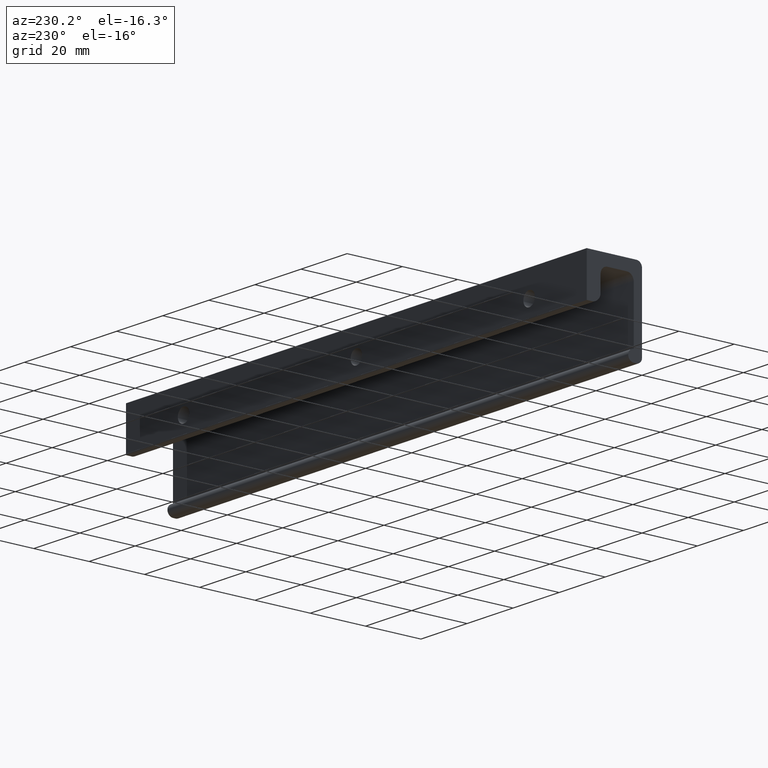
[diagram: clean part render]
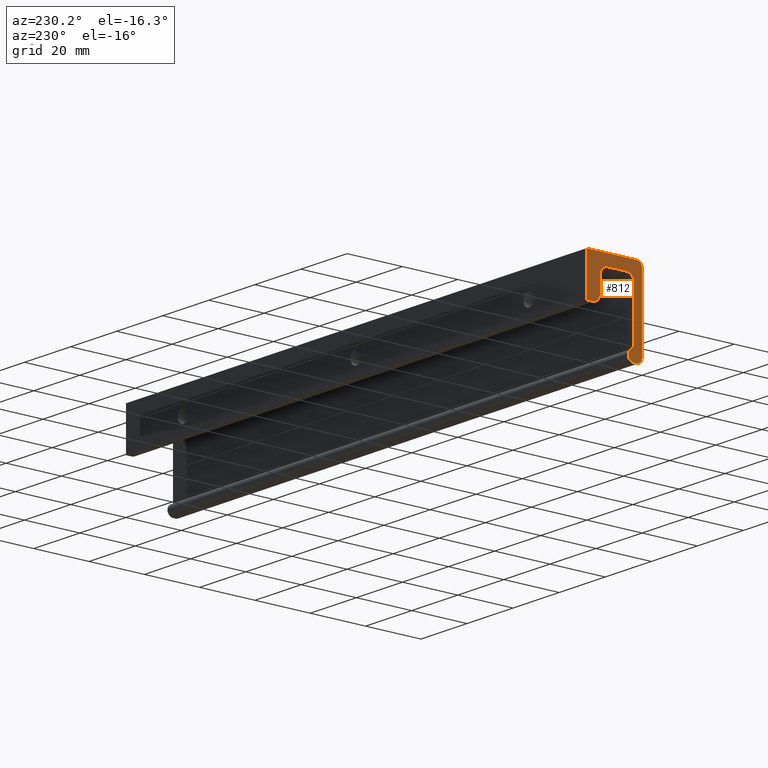
[diagram: same view with one face highlighted and labeled with its STEP entity id]
A machine part, auxiliary view. The second image highlights one B-rep face of the part: STEP entity #812.
In plain terms, the highlighted face is a freeform B-spline surface patch.
Its self-contained STEP definition (entity closure, byte-faithful):
#636=CARTESIAN_POINT('',(0.0,-5.000000000000110,-6.500000000000000));
#637=VERTEX_POINT('',#636);
#643=CARTESIAN_POINT('',(0.0,-5.0,-12.0));
#644=VERTEX_POINT('',#643);
#645=CARTESIAN_POINT('',(0.0,-5.0,-12.0));
#646=CARTESIAN_POINT('',(0.0,-5.000000000000110,-6.500000000000000));
#647=QUASI_UNIFORM_CURVE('',1,(#645,#646),.UNSPECIFIED.,.F.,.U.);
#648=EDGE_CURVE('',#644,#637,#647,.T.);
#665=CARTESIAN_POINT('',(-7.105427E-015,-20.998999961236120,1.498499941854179));
#666=CARTESIAN_POINT('',(-7.105427E-015,0.999000497677920,1.498499941854179));
#667=CARTESIAN_POINT('',(-7.105427E-015,-20.998999961236120,-31.498500746516889));
#668=CARTESIAN_POINT('',(-7.105427E-015,0.999000497677920,-31.498500746516889));
#669=B_SPLINE_SURFACE_WITH_KNOTS('',1,1,((#665,#667),(#666,#668)),.UNSPECIFIED.,.F.,.F.,.U.,(2,2),(2,2),(0.0,21.998000458914039),(0.0,32.997000688371067),.UNSPECIFIED.);
#670=CARTESIAN_POINT('',(0.0,0.0,0.0));
#671=VERTEX_POINT('',#670);
#672=CARTESIAN_POINT('',(0.0,0.0,-15.0));
#673=VERTEX_POINT('',#672);
#674=CARTESIAN_POINT('',(0.0,0.0,0.0));
#675=CARTESIAN_POINT('',(0.0,0.0,-15.0));
#676=QUASI_UNIFORM_CURVE('',1,(#674,#675),.UNSPECIFIED.,.F.,.U.);
#677=EDGE_CURVE('',#671,#673,#676,.T.);
#678=ORIENTED_EDGE('',*,*,#677,.T.);
#679=CARTESIAN_POINT('',(0.0,-2.0,-15.0));
#680=VERTEX_POINT('',#679);
#681=CARTESIAN_POINT('',(0.0,0.0,-15.0));
#682=CARTESIAN_POINT('',(0.0,-2.0,-15.0));
#683=QUASI_UNIFORM_CURVE('',1,(#681,#682),.UNSPECIFIED.,.F.,.U.);
#684=EDGE_CURVE('',#673,#680,#683,.T.);
#685=ORIENTED_EDGE('',*,*,#684,.T.);
#686=CARTESIAN_POINT('',(0.0,-5.0,-12.0));
#687=CARTESIAN_POINT('',(0.0,-5.000000000000001,-14.999999999999995));
#688=CARTESIAN_POINT('',(0.0,-2.0,-15.0));
#696=(BOUNDED_CURVE()B_SPLINE_CURVE(2,(#686,#687,#688),.UNSPECIFIED.,.F.,.U.)CURVE()GEOMETRIC_REPRESENTATION_ITEM()QUASI_UNIFORM_CURVE()RATIONAL_B_SPLINE_CURVE((1.0,0.707106781186548,1.0))REPRESENTATION_ITEM(''));
#697=EDGE_CURVE('',#644,#680,#696,.T.);
#698=ORIENTED_EDGE('',*,*,#697,.F.);
#699=ORIENTED_EDGE('',*,*,#648,.T.);
#700=CARTESIAN_POINT('',(0.0,-7.500000000000110,-4.0));
#701=VERTEX_POINT('',#700);
#702=CARTESIAN_POINT('',(0.0,-5.000000000000110,-6.500000000000000));
#703=CARTESIAN_POINT('',(0.0,-5.000000000000110,-4.000000000000000));
#704=CARTESIAN_POINT('',(0.0,-7.500000000000110,-4.0));
#712=(BOUNDED_CURVE()B_SPLINE_CURVE(2,(#702,#703,#704),.UNSPECIFIED.,.F.,.U.)CURVE()GEOMETRIC_REPRESENTATION_ITEM()QUASI_UNIFORM_CURVE()RATIONAL_B_SPLINE_CURVE((1.0,0.707106781186548,1.0))REPRESENTATION_ITEM(''));
#713=EDGE_CURVE('',#637,#701,#712,.T.);
#714=ORIENTED_EDGE('',*,*,#713,.T.);
#715=CARTESIAN_POINT('',(0.0,-14.500000000000000,-4.000000000000085));
#716=VERTEX_POINT('',#715);
#717=CARTESIAN_POINT('',(0.0,-7.500000000000110,-4.0));
#718=CARTESIAN_POINT('',(0.0,-14.500000000000000,-4.000000000000085));
#719=QUASI_UNIFORM_CURVE('',1,(#717,#718),.UNSPECIFIED.,.F.,.U.);
#720=EDGE_CURVE('',#701,#716,#719,.T.);
#721=ORIENTED_EDGE('',*,*,#720,.T.);
#722=CARTESIAN_POINT('',(0.0,-17.0,-6.500000000000000));
#723=VERTEX_POINT('',#722);
#724=CARTESIAN_POINT('',(0.0,-14.500000000000000,-4.000000000000085));
#725=CARTESIAN_POINT('',(0.0,-17.000000000000004,-4.000000000000000));
#726=CARTESIAN_POINT('',(0.0,-17.0,-6.500000000000000));
#734=(BOUNDED_CURVE()B_SPLINE_CURVE(2,(#724,#725,#726),.UNSPECIFIED.,.F.,.U.)CURVE()GEOMETRIC_REPRESENTATION_ITEM()QUASI_UNIFORM_CURVE()RATIONAL_B_SPLINE_CURVE((1.0,0.707106781186548,1.0))REPRESENTATION_ITEM(''));
#735=EDGE_CURVE('',#716,#723,#734,.T.);
#736=ORIENTED_EDGE('',*,*,#735,.T.);
#737=CARTESIAN_POINT('',(0.0,-17.000000000000249,-26.0));
#738=VERTEX_POINT('',#737);
#739=CARTESIAN_POINT('',(0.0,-17.0,-6.500000000000000));
#740=CARTESIAN_POINT('',(0.0,-17.000000000000249,-26.0));
#741=QUASI_UNIFORM_CURVE('',1,(#739,#740),.UNSPECIFIED.,.F.,.U.);
#742=EDGE_CURVE('',#723,#738,#741,.T.);
#743=ORIENTED_EDGE('',*,*,#742,.T.);
#744=CARTESIAN_POINT('',(0.0,-17.000000000000249,-30.0));
#745=VERTEX_POINT('',#744);
#746=CARTESIAN_POINT('',(0.0,-17.000000000000249,-30.0));
#747=CARTESIAN_POINT('',(0.0,-15.000000000000249,-30.000000000000004));
#748=CARTESIAN_POINT('',(0.0,-15.000000000000250,-28.0));
#749=CARTESIAN_POINT('',(0.0,-15.000000000000249,-26.000000000000004));
#750=CARTESIAN_POINT('',(0.0,-17.000000000000249,-26.0));
#758=(BOUNDED_CURVE()B_SPLINE_CURVE(2,(#746,#747,#748,#749,#750),.UNSPECIFIED.,.F.,.U.)B_SPLINE_CURVE_WITH_KNOTS((3,2,3),(0.0,0.500000000000000,1.0),.UNSPECIFIED.)CURVE()GEOMETRIC_REPRESENTATION_ITEM()RATIONAL_B_SPLINE_CURVE((1.0,0.707106781186548,1.0,0.707106781186548,1.0))REPRESENTATION_ITEM(''));
#759=EDGE_CURVE('',#745,#738,#758,.T.);
#760=ORIENTED_EDGE('',*,*,#759,.F.);
#761=CARTESIAN_POINT('',(0.0,-18.0,-30.0));
#762=VERTEX_POINT('',#761);
#763=CARTESIAN_POINT('',(0.0,-17.000000000000249,-30.0));
#764=CARTESIAN_POINT('',(0.0,-18.0,-30.0));
#765=QUASI_UNIFORM_CURVE('',1,(#763,#764),.UNSPECIFIED.,.F.,.U.);
#766=EDGE_CURVE('',#745,#762,#765,.T.);
#767=ORIENTED_EDGE('',*,*,#766,.T.);
#768=CARTESIAN_POINT('',(0.0,-20.0,-28.0));
#769=VERTEX_POINT('',#768);
#770=CARTESIAN_POINT('',(0.0,-20.0,-28.0));
#771=CARTESIAN_POINT('',(0.0,-19.999999999999996,-30.000000000000004));
#772=CARTESIAN_POINT('',(0.0,-18.0,-30.0));
#780=(BOUNDED_CURVE()B_SPLINE_CURVE(2,(#770,#771,#772),.UNSPECIFIED.,.F.,.U.)CURVE()GEOMETRIC_REPRESENTATION_ITEM()QUASI_UNIFORM_CURVE()RATIONAL_B_SPLINE_CURVE((1.0,0.707106781186548,1.0))REPRESENTATION_ITEM(''));
#781=EDGE_CURVE('',#769,#762,#780,.T.);
#782=ORIENTED_EDGE('',*,*,#781,.F.);
#783=CARTESIAN_POINT('',(0.0,-20.0,-2.0));
#784=VERTEX_POINT('',#783);
#785=CARTESIAN_POINT('',(0.0,-20.0,-28.0));
#786=CARTESIAN_POINT('',(0.0,-20.0,-2.0));
#787=QUASI_UNIFORM_CURVE('',1,(#785,#786),.UNSPECIFIED.,.F.,.U.);
#788=EDGE_CURVE('',#769,#784,#787,.T.);
#789=ORIENTED_EDGE('',*,*,#788,.T.);
#790=CARTESIAN_POINT('',(0.0,-18.0,2.220446E-016));
#791=VERTEX_POINT('',#790);
#792=CARTESIAN_POINT('',(0.0,-18.0,0.0));
#793=CARTESIAN_POINT('',(0.0,-19.999999999999996,0.0));
#794=CARTESIAN_POINT('',(0.0,-20.0,-2.0));
#802=(BOUNDED_CURVE()B_SPLINE_CURVE(2,(#792,#793,#794),.UNSPECIFIED.,.F.,.U.)CURVE()GEOMETRIC_REPRESENTATION_ITEM()QUASI_UNIFORM_CURVE()RATIONAL_B_SPLINE_CURVE((1.0,0.707106781186548,1.0))REPRESENTATION_ITEM(''));
#803=EDGE_CURVE('',#791,#784,#802,.T.);
#804=ORIENTED_EDGE('',*,*,#803,.F.);
#805=CARTESIAN_POINT('',(0.0,-18.0,2.220446E-016));
#806=CARTESIAN_POINT('',(0.0,0.0,0.0));
#807=QUASI_UNIFORM_CURVE('',1,(#805,#806),.UNSPECIFIED.,.F.,.U.);
#808=EDGE_CURVE('',#791,#671,#807,.T.);
#809=ORIENTED_EDGE('',*,*,#808,.T.);
#810=EDGE_LOOP('',(#678,#685,#698,#699,#714,#721,#736,#743,#760,#767,#782,#789,#804,#809));
#811=FACE_OUTER_BOUND('',#810,.T.);
#812=ADVANCED_FACE('',(#811),#669,.T.);